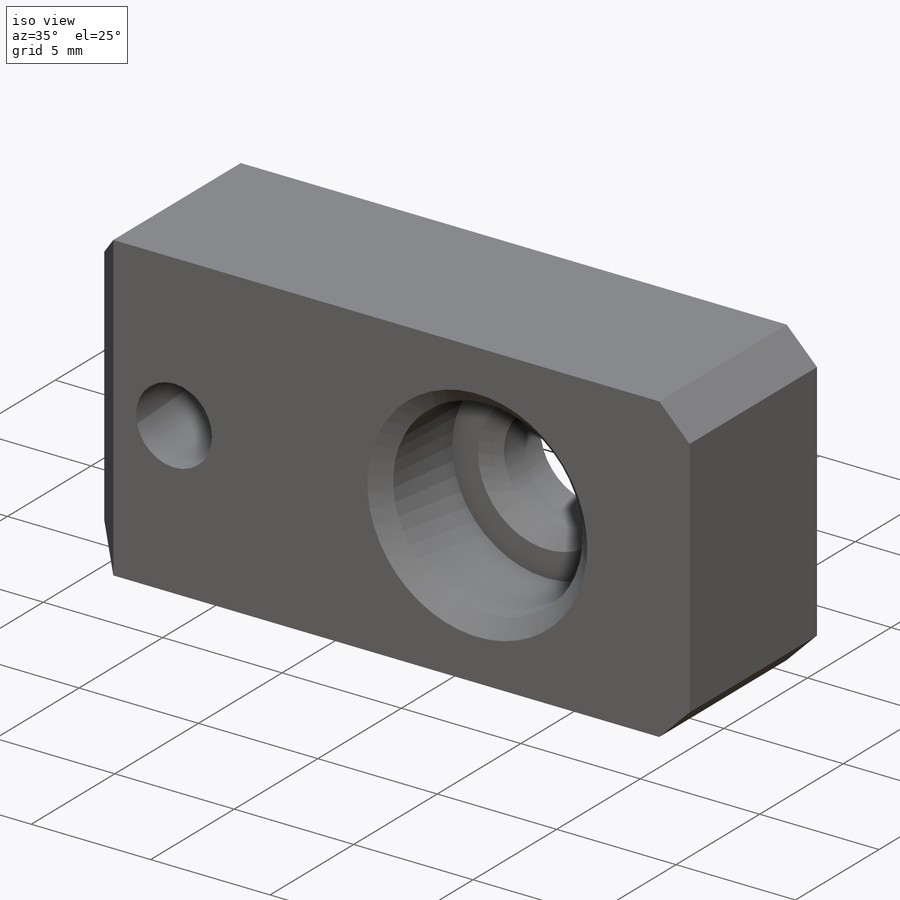
[diagram: iso view]
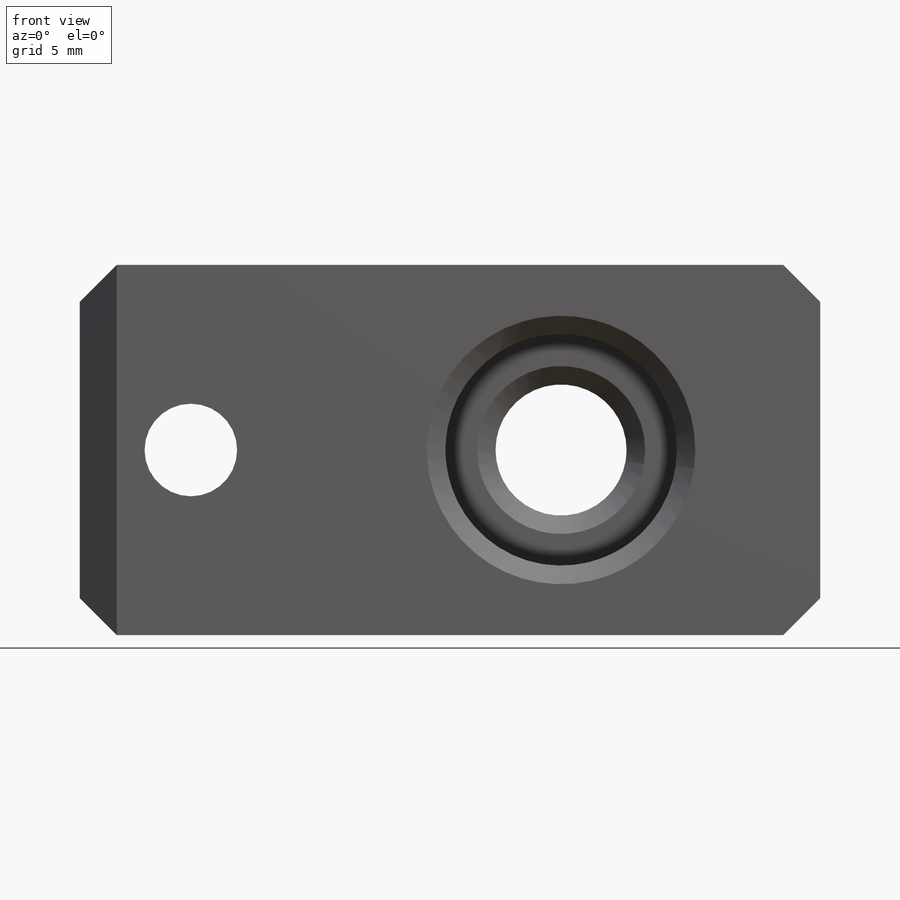
[diagram: front view]
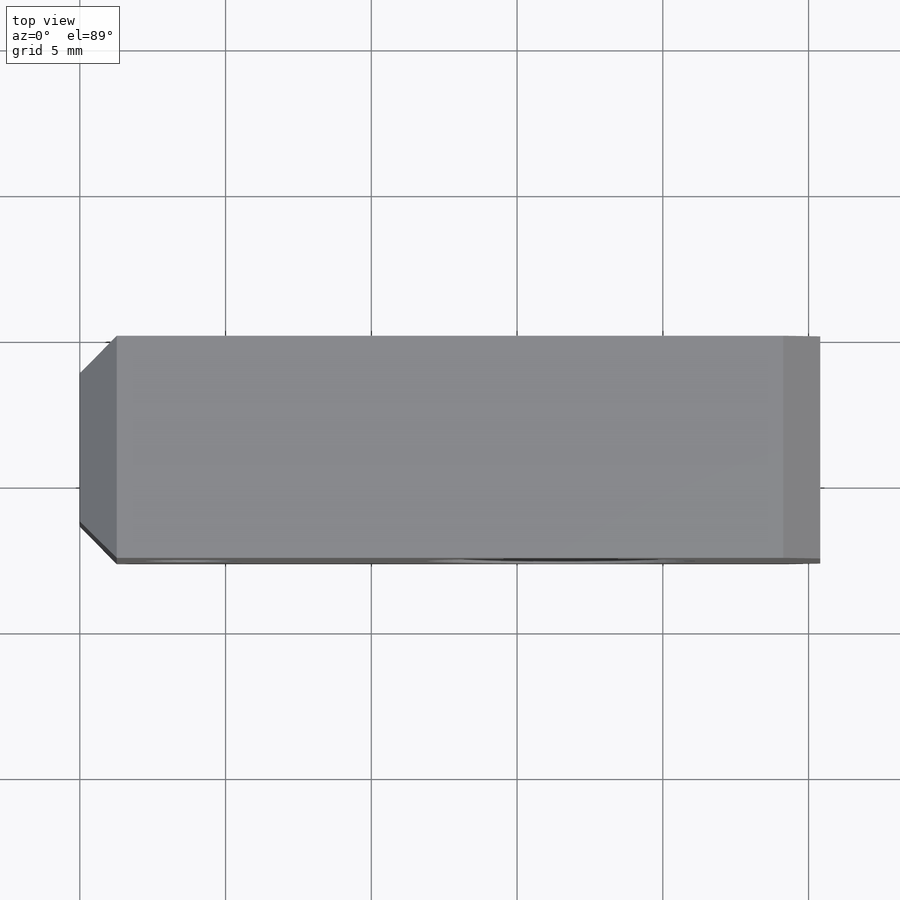
[diagram: top view]
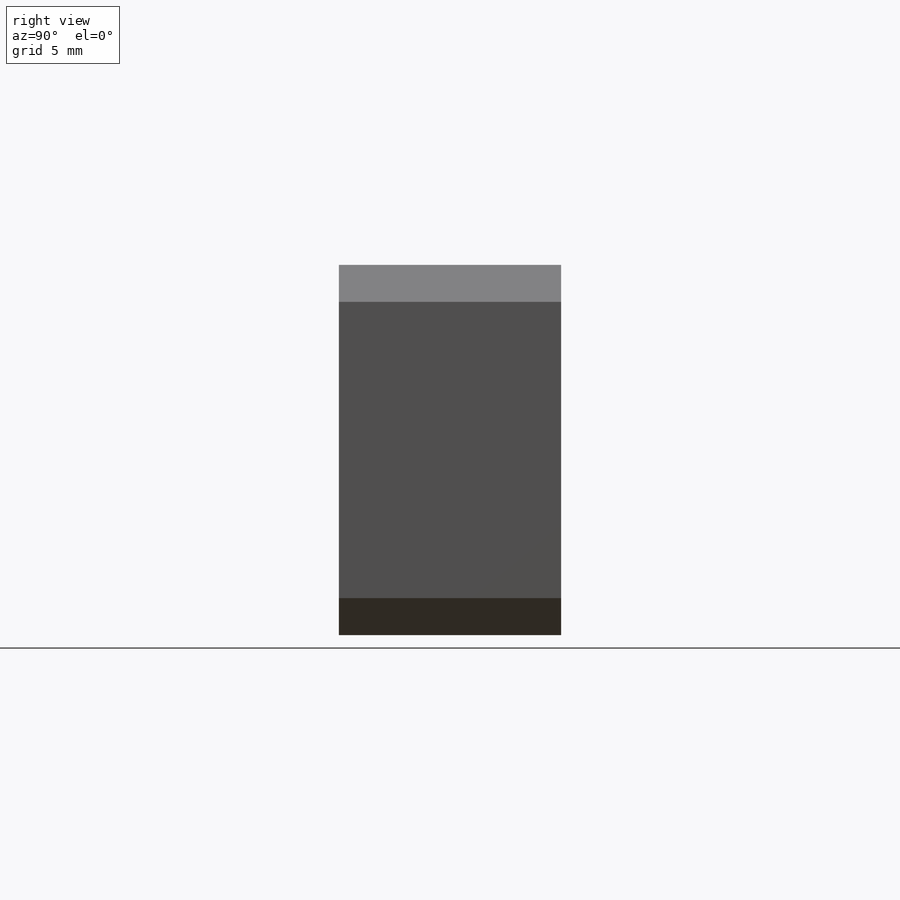
[diagram: right view]
SOLIDWORKS PART (.sldprt)
format: sldprt  version: not decoded by parser v0  size: 265,216 bytes
history: native  units: mm
features: sketch x5, hole x2, material x1, extrude x1, chamfer x1 + 1 further entry (+13 scaffold rows collapsed)
feature tree (24):
  scaffold x13  (default folders/planes/origin — collapsed)
  material  "6061-T6 Al"
  "Origin"  ID=-1
  sketch  "Sketch1"  dims[c1.D3=~3.096801mm c1.D4=~3.096801mm c1.D5=~3.17246mm c1.D6=2.54mm c2.D3=2.54mm c2.D1=~13.222093mm c2.D2=~28.681771mm c3.D1=25.4mm c3.D2=12.7mm c3.D3=12.7mm c3.D4=3.81mm c4.D3=16.51mm]
  extrude  "Extrude1"  Depth=7.62mm
  chamfer  "Chamfer1"  Distance=1.27mm Angle=45deg
  hole  "CBORE for #8 Socket Head Cap Screw1"  Diameter=4.4958mm Depth=7.62mm
  sketch  "Sketch3"
  sketch  "Sketch2"  dims[hole-wizard template sketch: 28 standard entries collapsed; hole parameters kept: c8.Thru Hole Dia.=4.4958mm c8.Thru Hole Depth=7.62mm c8.C'Bore Dia.=7.9375mm c8.C'Bore Depth=4.1656mm c8.Near C'Sink Dia.=9.2075mm c8.D6=~4.444873mm c8.Near C'Sink Angle=90.0deg c8.Mid C'Sink Dia.=5.7658mm c8.D8=~4.444873mm c8.Mid C'Sink Angle=90.0deg c8.Far C'Sink Dia.=5.7658mm c8.D10=~8.980256mm c8.Far C'Sink Angle=90.0deg]
  hole  "CBORE for #4 Socket Head Cap Screw1"  Diameter=3.175mm Depth=7.62mm
  sketch  "Sketch5"  dims[D1=12.7mm]
  sketch  "Sketch4"  dims[hole-wizard template sketch: 41 standard entries collapsed; hole parameters kept: c12.Thru Hole Dia.=3.175mm c12.Thru Hole Depth=7.62mm c12.C'Bore Dia.=3.2004mm c12.C'Bore Depth=1.524mm c12.Near C'Sink Dia.=3.81mm c12.D6=~4.399409mm c12.Near C'Sink Angle=90.0deg]
decode coverage: 8 of 9 modeling features carry decoded parameters; 1 rows unclassified (native names shown)
note: ~ marks probable driven/reference dimensions
note: suppression state not decoded; provenance and decode notes live in map.json
